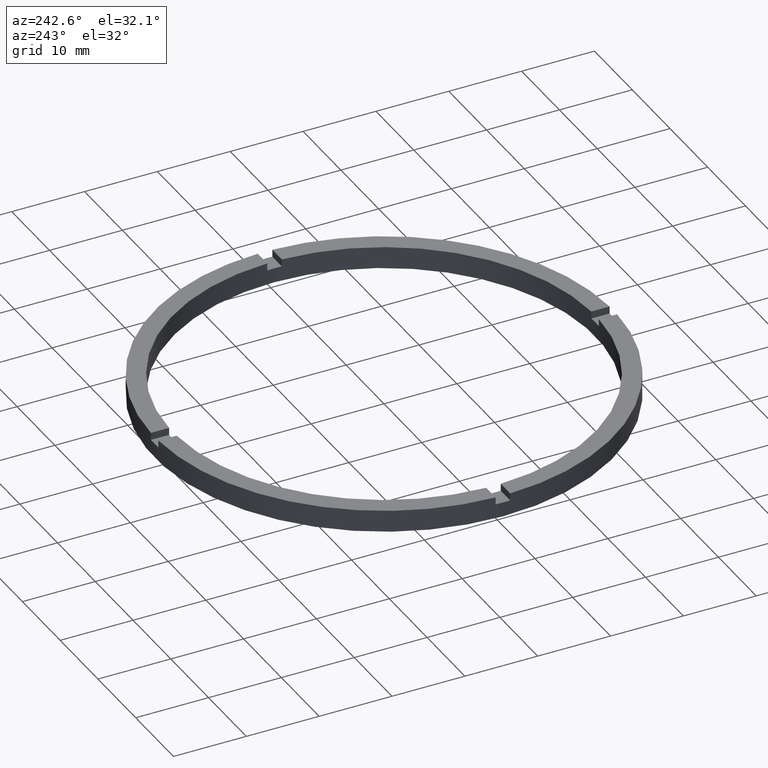
[diagram: clean part render]
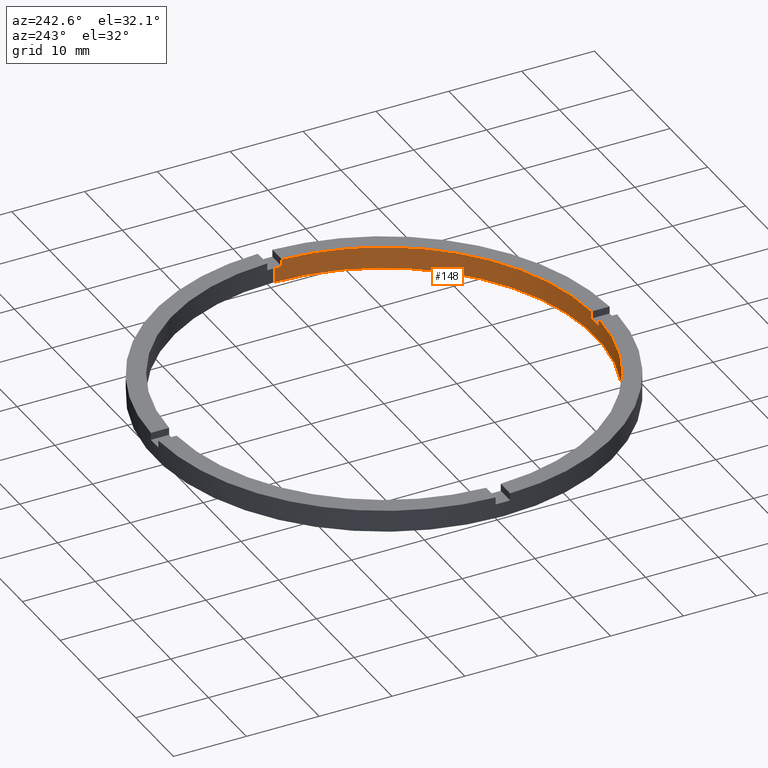
[diagram: same view with one face highlighted and labeled with its STEP entity id]
A machine part, auxiliary view. The second image highlights one B-rep face of the part: STEP entity #148.
In plain terms, the highlighted cylindrical surface (partial cylindrical patch) has radius 29 mm, axis along (-0, -0, -1).
Its self-contained STEP definition (entity closure, byte-faithful):
#6 = DIRECTION ( 'NONE',  ( 1.000000000000000000, 0.000000000000000000, 0.000000000000000000 ) ) ;
#15 = AXIS2_PLACEMENT_3D ( 'NONE', #52, #56, #446 ) ;
#16 = CARTESIAN_POINT ( 'NONE',  ( 0.9999999999998382405, -28.98275349237888321, 3.000000000000000000 ) ) ;
#21 = DIRECTION ( 'NONE',  ( -0.000000000000000000, -0.000000000000000000, -1.000000000000000000 ) ) ;
#22 = LINE ( 'NONE', #16, #295 ) ;
#23 = VERTEX_POINT ( 'NONE', #662 ) ;
#32 = EDGE_LOOP ( 'NONE', ( #470, #450, #317, #457, #547, #167, #749, #491, #443, #499, #717, #742 ) ) ;
#37 = VERTEX_POINT ( 'NONE', #614 ) ;
#40 = VERTEX_POINT ( 'NONE', #74 ) ;
#41 = DIRECTION ( 'NONE',  ( 1.000000000000000000, 0.000000000000000000, 0.000000000000000000 ) ) ;
#43 = CARTESIAN_POINT ( 'NONE',  ( -1.000000000000161871, -28.98275349237887255, 3.000000000000000000 ) ) ;
#52 = CARTESIAN_POINT ( 'NONE',  ( 0.000000000000000000, 0.000000000000000000, 0.000000000000000000 ) ) ;
#56 = DIRECTION ( 'NONE',  ( 0.000000000000000000, 0.000000000000000000, 1.000000000000000000 ) ) ;
#61 = EDGE_CURVE ( 'NONE', #548, #37, #172, .T. ) ;
#66 = CARTESIAN_POINT ( 'NONE',  ( 29.00000000000000000, 3.551475717527324030E-15, 3.000000000000000000 ) ) ;
#74 = CARTESIAN_POINT ( 'NONE',  ( 0.9999999999998382405, -28.98275349237888321, 3.000000000000000000 ) ) ;
#79 = EDGE_CURVE ( 'NONE', #250, #449, #689, .T. ) ;
#83 = DIRECTION ( 'NONE',  ( 0.000000000000000000, 0.000000000000000000, 1.000000000000000000 ) ) ;
#87 = EDGE_CURVE ( 'NONE', #266, #550, #684, .T. ) ;
#88 = CIRCLE ( 'NONE', #15, 29.00000000000000000 ) ;
#103 = AXIS2_PLACEMENT_3D ( 'NONE', #628, #83, #575 ) ;
#127 = EDGE_CURVE ( 'NONE', #773, #266, #693, .T. ) ;
#133 = DIRECTION ( 'NONE',  ( 0.000000000000000000, 0.000000000000000000, 1.000000000000000000 ) ) ;
#148 = ADVANCED_FACE ( 'NONE', ( #435 ), #440, .F. ) ;
#152 = EDGE_CURVE ( 'NONE', #23, #205, #177, .T. ) ;
#159 = CARTESIAN_POINT ( 'NONE',  ( -28.98275349237887610, -1.000000000000025313, 2.000000000000000000 ) ) ;
#161 = CARTESIAN_POINT ( 'NONE',  ( 28.98275349237887255, -1.000000000000158540, 2.000000000000000000 ) ) ;
#167 = ORIENTED_EDGE ( 'NONE', *, *, #79, .F. ) ;
#168 = DIRECTION ( 'NONE',  ( 1.000000000000000000, 0.000000000000000000, 0.000000000000000000 ) ) ;
#172 = CIRCLE ( 'NONE', #685, 29.00000000000000000 ) ;
#177 = LINE ( 'NONE', #497, #196 ) ;
#196 = VECTOR ( 'NONE', #556, 1000.000000000000000 ) ;
#198 = CARTESIAN_POINT ( 'NONE',  ( 0.000000000000000000, 0.000000000000000000, 2.000000000000000000 ) ) ;
#204 = DIRECTION ( 'NONE',  ( -0.000000000000000000, -0.000000000000000000, -1.000000000000000000 ) ) ;
#205 = VERTEX_POINT ( 'NONE', #328 ) ;
#238 = EDGE_CURVE ( 'NONE', #23, #449, #382, .T. ) ;
#242 = EDGE_CURVE ( 'NONE', #250, #512, #727, .T. ) ;
#249 = VERTEX_POINT ( 'NONE', #341 ) ;
#250 = VERTEX_POINT ( 'NONE', #754 ) ;
#257 = DIRECTION ( 'NONE',  ( -1.000000000000000000, 0.000000000000000000, 0.000000000000000000 ) ) ;
#262 = CARTESIAN_POINT ( 'NONE',  ( -28.98275349237887610, -1.000000000000025313, 3.000000000000000000 ) ) ;
#266 = VERTEX_POINT ( 'NONE', #581 ) ;
#295 = VECTOR ( 'NONE', #719, 1000.000000000000000 ) ;
#299 = AXIS2_PLACEMENT_3D ( 'NONE', #461, #399, #41 ) ;
#302 = AXIS2_PLACEMENT_3D ( 'NONE', #395, #682, #572 ) ;
#306 = EDGE_CURVE ( 'NONE', #773, #249, #543, .T. ) ;
#311 = VECTOR ( 'NONE', #331, 1000.000000000000000 ) ;
#312 = EDGE_CURVE ( 'NONE', #40, #37, #22, .T. ) ;
#313 = LINE ( 'NONE', #612, #315 ) ;
#315 = VECTOR ( 'NONE', #133, 1000.000000000000000 ) ;
#317 = ORIENTED_EDGE ( 'NONE', *, *, #528, .F. ) ;
#328 = CARTESIAN_POINT ( 'NONE',  ( -29.00000000000000000, 0.000000000000000000, 0.000000000000000000 ) ) ;
#331 = DIRECTION ( 'NONE',  ( 0.000000000000000000, 0.000000000000000000, 1.000000000000000000 ) ) ;
#341 = CARTESIAN_POINT ( 'NONE',  ( 28.98275349237887255, -1.000000000000158540, 3.000000000000000000 ) ) ;
#370 = EDGE_CURVE ( 'NONE', #548, #512, #313, .T. ) ;
#382 = CIRCLE ( 'NONE', #299, 29.00000000000000000 ) ;
#395 = CARTESIAN_POINT ( 'NONE',  ( 0.000000000000000000, 0.000000000000000000, 3.000000000000000000 ) ) ;
#399 = DIRECTION ( 'NONE',  ( 0.000000000000000000, 0.000000000000000000, 1.000000000000000000 ) ) ;
#427 = VECTOR ( 'NONE', #503, 1000.000000000000000 ) ;
#435 = FACE_OUTER_BOUND ( 'NONE', #32, .T. ) ;
#440 = CYLINDRICAL_SURFACE ( 'NONE', #750, 29.00000000000000000 ) ;
#443 = ORIENTED_EDGE ( 'NONE', *, *, #61, .T. ) ;
#446 = DIRECTION ( 'NONE',  ( 1.000000000000000000, 0.000000000000000000, 0.000000000000000000 ) ) ;
#449 = VERTEX_POINT ( 'NONE', #159 ) ;
#450 = ORIENTED_EDGE ( 'NONE', *, *, #87, .T. ) ;
#454 = AXIS2_PLACEMENT_3D ( 'NONE', #198, #667, #168 ) ;
#457 = ORIENTED_EDGE ( 'NONE', *, *, #152, .F. ) ;
#461 = CARTESIAN_POINT ( 'NONE',  ( 0.000000000000000000, 0.000000000000000000, 2.000000000000000000 ) ) ;
#470 = ORIENTED_EDGE ( 'NONE', *, *, #127, .T. ) ;
#491 = ORIENTED_EDGE ( 'NONE', *, *, #370, .F. ) ;
#497 = CARTESIAN_POINT ( 'NONE',  ( -29.00000000000000000, 0.000000000000000000, 3.000000000000000000 ) ) ;
#499 = ORIENTED_EDGE ( 'NONE', *, *, #312, .F. ) ;
#503 = DIRECTION ( 'NONE',  ( -0.000000000000000000, -0.000000000000000000, -1.000000000000000000 ) ) ;
#512 = VERTEX_POINT ( 'NONE', #43 ) ;
#528 = EDGE_CURVE ( 'NONE', #205, #550, #88, .T. ) ;
#543 = LINE ( 'NONE', #661, #311 ) ;
#547 = ORIENTED_EDGE ( 'NONE', *, *, #238, .T. ) ;
#548 = VERTEX_POINT ( 'NONE', #584 ) ;
#550 = VERTEX_POINT ( 'NONE', #695 ) ;
#551 = DIRECTION ( 'NONE',  ( -0.000000000000000000, 0.000000000000000000, 1.000000000000000000 ) ) ;
#556 = DIRECTION ( 'NONE',  ( -0.000000000000000000, -0.000000000000000000, -1.000000000000000000 ) ) ;
#571 = CARTESIAN_POINT ( 'NONE',  ( 0.000000000000000000, 0.000000000000000000, 3.000000000000000000 ) ) ;
#572 = DIRECTION ( 'NONE',  ( 1.000000000000000000, 0.000000000000000000, 0.000000000000000000 ) ) ;
#575 = DIRECTION ( 'NONE',  ( 1.000000000000000000, 0.000000000000000000, 0.000000000000000000 ) ) ;
#581 = CARTESIAN_POINT ( 'NONE',  ( 29.00000000000000000, 3.551475717527324030E-15, 2.000000000000000000 ) ) ;
#584 = CARTESIAN_POINT ( 'NONE',  ( -1.000000000000161871, -28.98275349237887255, 2.000000000000000000 ) ) ;
#612 = CARTESIAN_POINT ( 'NONE',  ( -1.000000000000161871, -28.98275349237887255, 3.000000000000000000 ) ) ;
#614 = CARTESIAN_POINT ( 'NONE',  ( 0.9999999999998382405, -28.98275349237888321, 2.000000000000000000 ) ) ;
#616 = CIRCLE ( 'NONE', #302, 29.00000000000000000 ) ;
#628 = CARTESIAN_POINT ( 'NONE',  ( 0.000000000000000000, 0.000000000000000000, 3.000000000000000000 ) ) ;
#661 = CARTESIAN_POINT ( 'NONE',  ( 28.98275349237887255, -1.000000000000158540, 3.000000000000000000 ) ) ;
#662 = CARTESIAN_POINT ( 'NONE',  ( -29.00000000000000000, 0.000000000000000000, 2.000000000000000000 ) ) ;
#667 = DIRECTION ( 'NONE',  ( 0.000000000000000000, 0.000000000000000000, 1.000000000000000000 ) ) ;
#670 = CARTESIAN_POINT ( 'NONE',  ( 0.000000000000000000, 0.000000000000000000, 2.000000000000000000 ) ) ;
#680 = EDGE_CURVE ( 'NONE', #40, #249, #616, .T. ) ;
#681 = VECTOR ( 'NONE', #204, 1000.000000000000000 ) ;
#682 = DIRECTION ( 'NONE',  ( 0.000000000000000000, 0.000000000000000000, 1.000000000000000000 ) ) ;
#684 = LINE ( 'NONE', #66, #681 ) ;
#685 = AXIS2_PLACEMENT_3D ( 'NONE', #670, #551, #6 ) ;
#689 = LINE ( 'NONE', #262, #427 ) ;
#693 = CIRCLE ( 'NONE', #454, 29.00000000000000000 ) ;
#695 = CARTESIAN_POINT ( 'NONE',  ( 29.00000000000000000, 3.551475717527324030E-15, 0.000000000000000000 ) ) ;
#717 = ORIENTED_EDGE ( 'NONE', *, *, #680, .T. ) ;
#719 = DIRECTION ( 'NONE',  ( -0.000000000000000000, -0.000000000000000000, -1.000000000000000000 ) ) ;
#727 = CIRCLE ( 'NONE', #103, 29.00000000000000000 ) ;
#742 = ORIENTED_EDGE ( 'NONE', *, *, #306, .F. ) ;
#749 = ORIENTED_EDGE ( 'NONE', *, *, #242, .T. ) ;
#750 = AXIS2_PLACEMENT_3D ( 'NONE', #571, #21, #257 ) ;
#754 = CARTESIAN_POINT ( 'NONE',  ( -28.98275349237887610, -1.000000000000025313, 3.000000000000000000 ) ) ;
#773 = VERTEX_POINT ( 'NONE', #161 ) ;